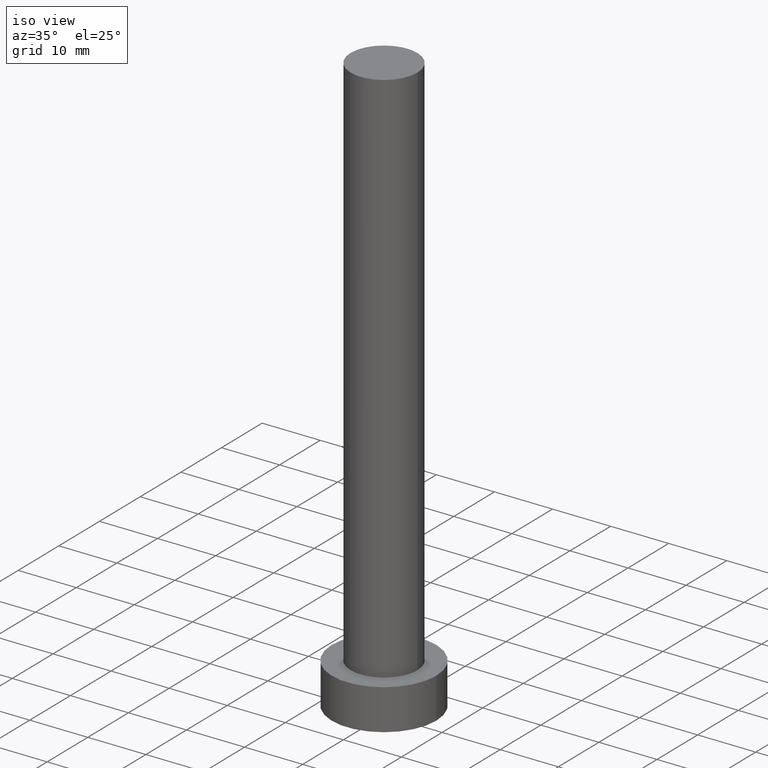
[diagram: clean part render]
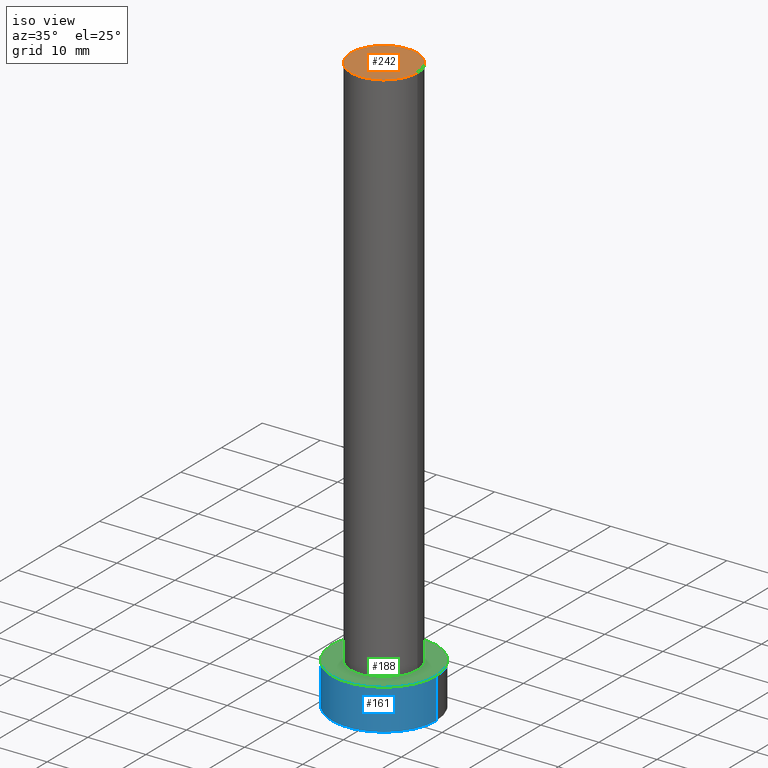
[diagram: same view with three faces highlighted in distinct colors, each labeled with its STEP entity id]
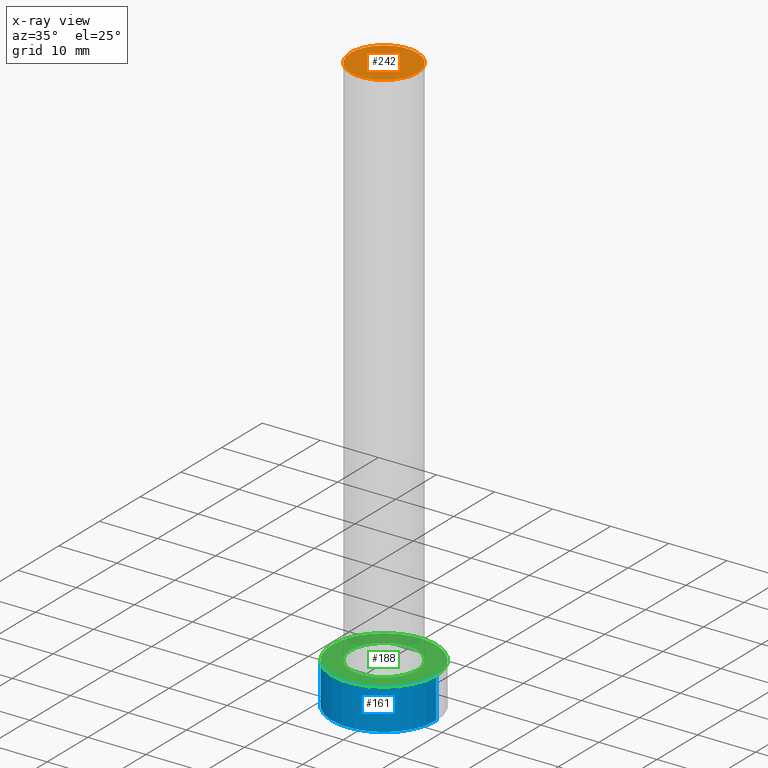
[diagram: x-ray of the same camera — body ghosted, the three highlighted faces saturated]
A machine part, iso view with three faces highlighted in distinct colors.
The next image is the same camera in x-ray (body ghosted, the three faces saturated) — at least one of them is partly hidden behind the body in this view.
Their STEP definitions:

[orange] entity #242 — the highlighted planar face has unit normal (0, 0, 1).
#5 = AXIS2_PLACEMENT_3D ( 'NONE', #243, #151, #91 ) ;
#16 = DIRECTION ( 'NONE',  ( 1.000000000000000000, 0.000000000000000000, 0.000000000000000000 ) ) ;
#23 = EDGE_LOOP ( 'NONE', ( #100, #192 ) ) ;
#34 = DIRECTION ( 'NONE',  ( 0.000000000000000000, 0.000000000000000000, 1.000000000000000000 ) ) ;
#48 = FACE_OUTER_BOUND ( 'NONE', #23, .T. ) ;
#59 = AXIS2_PLACEMENT_3D ( 'NONE', #156, #93, #16 ) ;
#84 = EDGE_CURVE ( 'NONE', #216, #249, #123, .T. ) ;
#91 = DIRECTION ( 'NONE',  ( 1.000000000000000000, 0.000000000000000000, 0.000000000000000000 ) ) ;
#93 = DIRECTION ( 'NONE',  ( 0.000000000000000000, 0.000000000000000000, 1.000000000000000000 ) ) ;
#100 = ORIENTED_EDGE ( 'NONE', *, *, #152, .T. ) ;
#115 = CIRCLE ( 'NONE', #59, 5.750000000000000000 ) ;
#116 = DIRECTION ( 'NONE',  ( 1.000000000000000000, 0.000000000000000000, -0.000000000000000000 ) ) ;
#123 = CIRCLE ( 'NONE', #5, 5.750000000000000000 ) ;
#138 = PLANE ( 'NONE',  #160 ) ;
#151 = DIRECTION ( 'NONE',  ( 0.000000000000000000, 0.000000000000000000, 1.000000000000000000 ) ) ;
#152 = EDGE_CURVE ( 'NONE', #249, #216, #115, .T. ) ;
#156 = CARTESIAN_POINT ( 'NONE',  ( 0.000000000000000000, 0.000000000000000000, 100.0000000000000000 ) ) ;
#160 = AXIS2_PLACEMENT_3D ( 'NONE', #211, #34, #116 ) ;
#185 = CARTESIAN_POINT ( 'NONE',  ( -5.750000000000000000, 0.000000000000000000, 100.0000000000000000 ) ) ;
#187 = CARTESIAN_POINT ( 'NONE',  ( 5.750000000000000000, 7.041719095097279894E-16, 100.0000000000000000 ) ) ;
#192 = ORIENTED_EDGE ( 'NONE', *, *, #84, .T. ) ;
#211 = CARTESIAN_POINT ( 'NONE',  ( 0.000000000000000000, 0.000000000000000000, 100.0000000000000000 ) ) ;
#216 = VERTEX_POINT ( 'NONE', #187 ) ;
#242 = ADVANCED_FACE ( 'NONE', ( #48 ), #138, .T. ) ;
#243 = CARTESIAN_POINT ( 'NONE',  ( 0.000000000000000000, 0.000000000000000000, 100.0000000000000000 ) ) ;
#249 = VERTEX_POINT ( 'NONE', #185 ) ;

[blue] entity #161 — the highlighted cylindrical surface (partial cylindrical patch) has radius 9 mm, axis along (-0, -0, -1).
#8 = CARTESIAN_POINT ( 'NONE',  ( 9.000000000000000000, 1.102182119232617714E-15, 7.000000000000000000 ) ) ;
#10 = CARTESIAN_POINT ( 'NONE',  ( -9.000000000000000000, 0.000000000000000000, 7.000000000000000000 ) ) ;
#20 = VECTOR ( 'NONE', #51, 1000.000000000000000 ) ;
#27 = EDGE_CURVE ( 'NONE', #112, #81, #103, .T. ) ;
#37 = LINE ( 'NONE', #147, #149 ) ;
#44 = AXIS2_PLACEMENT_3D ( 'NONE', #158, #191, #203 ) ;
#45 = AXIS2_PLACEMENT_3D ( 'NONE', #108, #236, #145 ) ;
#51 = DIRECTION ( 'NONE',  ( -0.000000000000000000, -0.000000000000000000, -1.000000000000000000 ) ) ;
#66 = CARTESIAN_POINT ( 'NONE',  ( 9.000000000000000000, 1.102182119232617714E-15, 0.000000000000000000 ) ) ;
#81 = VERTEX_POINT ( 'NONE', #66 ) ;
#82 = ORIENTED_EDGE ( 'NONE', *, *, #210, .T. ) ;
#83 = VERTEX_POINT ( 'NONE', #228 ) ;
#92 = CARTESIAN_POINT ( 'NONE',  ( 0.000000000000000000, 0.000000000000000000, 7.000000000000000000 ) ) ;
#96 = DIRECTION ( 'NONE',  ( -1.000000000000000000, 0.000000000000000000, 0.000000000000000000 ) ) ;
#103 = LINE ( 'NONE', #232, #20 ) ;
#108 = CARTESIAN_POINT ( 'NONE',  ( 0.000000000000000000, 0.000000000000000000, 7.000000000000000000 ) ) ;
#112 = VERTEX_POINT ( 'NONE', #8 ) ;
#117 = EDGE_CURVE ( 'NONE', #251, #112, #157, .T. ) ;
#126 = ORIENTED_EDGE ( 'NONE', *, *, #117, .F. ) ;
#127 = EDGE_CURVE ( 'NONE', #251, #83, #37, .T. ) ;
#128 = ORIENTED_EDGE ( 'NONE', *, *, #127, .T. ) ;
#131 = AXIS2_PLACEMENT_3D ( 'NONE', #92, #168, #96 ) ;
#145 = DIRECTION ( 'NONE',  ( 1.000000000000000000, 0.000000000000000000, 0.000000000000000000 ) ) ;
#147 = CARTESIAN_POINT ( 'NONE',  ( -9.000000000000000000, 0.000000000000000000, 7.000000000000000000 ) ) ;
#149 = VECTOR ( 'NONE', #237, 1000.000000000000000 ) ;
#153 = CYLINDRICAL_SURFACE ( 'NONE', #131, 9.000000000000000000 ) ;
#157 = CIRCLE ( 'NONE', #45, 9.000000000000000000 ) ;
#158 = CARTESIAN_POINT ( 'NONE',  ( 0.000000000000000000, 0.000000000000000000, 0.000000000000000000 ) ) ;
#161 = ADVANCED_FACE ( 'NONE', ( #171 ), #153, .T. ) ;
#168 = DIRECTION ( 'NONE',  ( -0.000000000000000000, -0.000000000000000000, -1.000000000000000000 ) ) ;
#171 = FACE_OUTER_BOUND ( 'NONE', #229, .T. ) ;
#184 = CIRCLE ( 'NONE', #44, 9.000000000000000000 ) ;
#191 = DIRECTION ( 'NONE',  ( 0.000000000000000000, 0.000000000000000000, 1.000000000000000000 ) ) ;
#203 = DIRECTION ( 'NONE',  ( 1.000000000000000000, 0.000000000000000000, 0.000000000000000000 ) ) ;
#210 = EDGE_CURVE ( 'NONE', #83, #81, #184, .T. ) ;
#228 = CARTESIAN_POINT ( 'NONE',  ( -9.000000000000000000, 0.000000000000000000, 0.000000000000000000 ) ) ;
#229 = EDGE_LOOP ( 'NONE', ( #239, #126, #128, #82 ) ) ;
#232 = CARTESIAN_POINT ( 'NONE',  ( 9.000000000000000000, 1.102182119232617714E-15, 7.000000000000000000 ) ) ;
#236 = DIRECTION ( 'NONE',  ( 0.000000000000000000, 0.000000000000000000, 1.000000000000000000 ) ) ;
#237 = DIRECTION ( 'NONE',  ( -0.000000000000000000, -0.000000000000000000, -1.000000000000000000 ) ) ;
#239 = ORIENTED_EDGE ( 'NONE', *, *, #27, .F. ) ;
#251 = VERTEX_POINT ( 'NONE', #10 ) ;

[green] entity #188 — the highlighted planar face has unit normal (0, 0, 1).
#8 = CARTESIAN_POINT ( 'NONE',  ( 9.000000000000000000, 1.102182119232617714E-15, 7.000000000000000000 ) ) ;
#9 = ORIENTED_EDGE ( 'NONE', *, *, #68, .F. ) ;
#10 = CARTESIAN_POINT ( 'NONE',  ( -9.000000000000000000, 0.000000000000000000, 7.000000000000000000 ) ) ;
#12 = CARTESIAN_POINT ( 'NONE',  ( 0.000000000000000000, 0.000000000000000000, 7.000000000000000000 ) ) ;
#17 = CARTESIAN_POINT ( 'NONE',  ( 0.000000000000000000, 0.000000000000000000, 7.000000000000000000 ) ) ;
#28 = CARTESIAN_POINT ( 'NONE',  ( 0.000000000000000000, 0.000000000000000000, 7.000000000000000000 ) ) ;
#32 = DIRECTION ( 'NONE',  ( 1.000000000000000000, 0.000000000000000000, 0.000000000000000000 ) ) ;
#33 = FACE_BOUND ( 'NONE', #159, .T. ) ;
#36 = CARTESIAN_POINT ( 'NONE',  ( -5.750000000000000000, 0.000000000000000000, 7.000000000000000000 ) ) ;
#45 = AXIS2_PLACEMENT_3D ( 'NONE', #108, #236, #145 ) ;
#52 = CARTESIAN_POINT ( 'NONE',  ( 5.750000000000000000, 7.041719095097279894E-16, 7.000000000000000000 ) ) ;
#68 = EDGE_CURVE ( 'NONE', #183, #190, #88, .T. ) ;
#74 = CARTESIAN_POINT ( 'NONE',  ( 0.000000000000000000, 0.000000000000000000, 7.000000000000000000 ) ) ;
#75 = DIRECTION ( 'NONE',  ( 1.000000000000000000, 0.000000000000000000, 0.000000000000000000 ) ) ;
#78 = DIRECTION ( 'NONE',  ( 0.000000000000000000, 0.000000000000000000, 1.000000000000000000 ) ) ;
#88 = CIRCLE ( 'NONE', #233, 5.750000000000000000 ) ;
#99 = ORIENTED_EDGE ( 'NONE', *, *, #120, .F. ) ;
#105 = ORIENTED_EDGE ( 'NONE', *, *, #117, .T. ) ;
#108 = CARTESIAN_POINT ( 'NONE',  ( 0.000000000000000000, 0.000000000000000000, 7.000000000000000000 ) ) ;
#112 = VERTEX_POINT ( 'NONE', #8 ) ;
#117 = EDGE_CURVE ( 'NONE', #251, #112, #157, .T. ) ;
#118 = DIRECTION ( 'NONE',  ( 0.000000000000000000, 0.000000000000000000, 1.000000000000000000 ) ) ;
#120 = EDGE_CURVE ( 'NONE', #190, #183, #189, .T. ) ;
#121 = PLANE ( 'NONE',  #166 ) ;
#134 = DIRECTION ( 'NONE',  ( 1.000000000000000000, 0.000000000000000000, -0.000000000000000000 ) ) ;
#135 = DIRECTION ( 'NONE',  ( 0.000000000000000000, 0.000000000000000000, 1.000000000000000000 ) ) ;
#143 = EDGE_CURVE ( 'NONE', #112, #251, #175, .T. ) ;
#145 = DIRECTION ( 'NONE',  ( 1.000000000000000000, 0.000000000000000000, 0.000000000000000000 ) ) ;
#157 = CIRCLE ( 'NONE', #45, 9.000000000000000000 ) ;
#159 = EDGE_LOOP ( 'NONE', ( #99, #9 ) ) ;
#166 = AXIS2_PLACEMENT_3D ( 'NONE', #12, #118, #134 ) ;
#175 = CIRCLE ( 'NONE', #213, 9.000000000000000000 ) ;
#183 = VERTEX_POINT ( 'NONE', #52 ) ;
#188 = ADVANCED_FACE ( 'NONE', ( #33, #224 ), #121, .T. ) ;
#189 = CIRCLE ( 'NONE', #253, 5.750000000000000000 ) ;
#190 = VERTEX_POINT ( 'NONE', #36 ) ;
#194 = ORIENTED_EDGE ( 'NONE', *, *, #143, .T. ) ;
#196 = EDGE_LOOP ( 'NONE', ( #105, #194 ) ) ;
#213 = AXIS2_PLACEMENT_3D ( 'NONE', #74, #240, #75 ) ;
#224 = FACE_OUTER_BOUND ( 'NONE', #196, .T. ) ;
#227 = DIRECTION ( 'NONE',  ( 1.000000000000000000, 0.000000000000000000, 0.000000000000000000 ) ) ;
#233 = AXIS2_PLACEMENT_3D ( 'NONE', #17, #78, #32 ) ;
#236 = DIRECTION ( 'NONE',  ( 0.000000000000000000, 0.000000000000000000, 1.000000000000000000 ) ) ;
#240 = DIRECTION ( 'NONE',  ( 0.000000000000000000, 0.000000000000000000, 1.000000000000000000 ) ) ;
#251 = VERTEX_POINT ( 'NONE', #10 ) ;
#253 = AXIS2_PLACEMENT_3D ( 'NONE', #28, #135, #227 ) ;